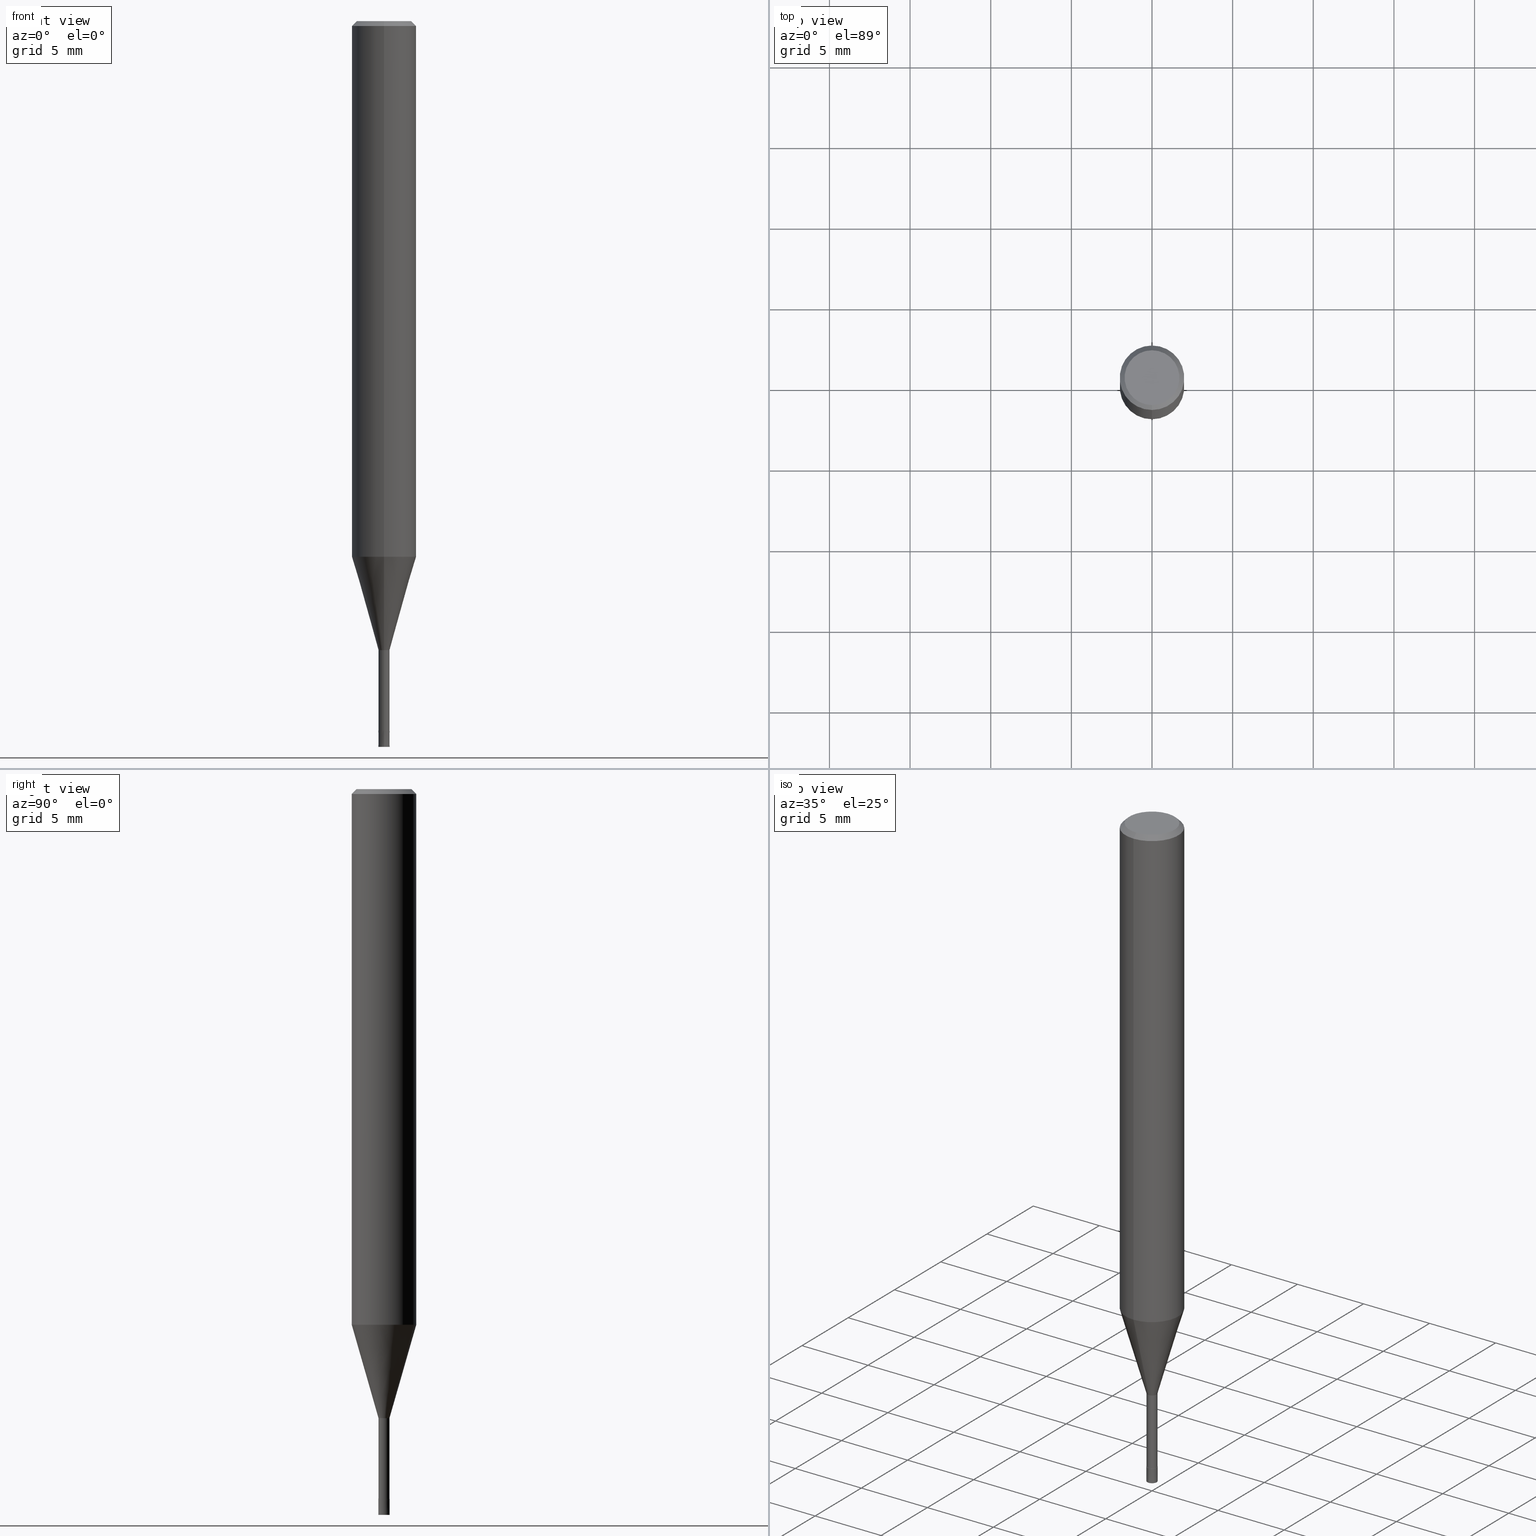
[diagram: canonical four-view strip — front | top / right | iso, engineering-drawing reading convention]
A machine part, canonical four-view strip (front | top / right | iso — engineering-drawing reading convention). The complete STEP part file that produces these views, byte-faithful:
ISO-10303-21;
HEADER;
FILE_DESCRIPTION(('no description'),'unknown implementation level');
FILE_NAME('HLS2007-060-Huellk.stp','  ',('CIMSOURCE GmbH'),('CADClick - KiM GmbH - www.kimweb.de'),'unknown preprocess','ACIS','unknown authorization');
FILE_SCHEMA(('automotive_design'));
ENDSEC;
DATA;
#1=MECHANICAL_DESIGN_GEOMETRIC_PRESENTATION_REPRESENTATION(' ',(#14,#15,#16,#17,#18,#19,#20,#21,#22,#23,#24,#25,#26,#27,#28,#29,#30,#31,#32,#33,#34,#35,#36,#37,#38,#39,#40,#41,#42,#43,#44,#45,#46,#47,#48,#49,#50,#51,#52,#53,#54,#55,#56,#57,#58,#59,#60,#61,#62,#63,#64,#65,#66,#67,#68,#69,#70,#71,#72),#10);
#2=PRODUCT_DEFINITION_CONTEXT('',#73,'design');
#3=APPLICATION_PROTOCOL_DEFINITION('INTERNATIONAL STANDARD','automotive_design',1994,#73);
#4=PRODUCT_CATEGORY_RELATIONSHIP('NONE','NONE',#74,#75);
#5=SHAPE_DEFINITION_REPRESENTATION(#76,#77);
#6=PRODUCT_DEFINITION_CONTEXT('',#78,'design');
#7=APPLICATION_PROTOCOL_DEFINITION('INTERNATIONAL STANDARD','automotive_design',1994,#78);
#8=PRODUCT_CATEGORY_RELATIONSHIP('NONE','NONE',#79,#80);
#9=SHAPE_DEFINITION_REPRESENTATION(#81,#82);
#10= (GEOMETRIC_REPRESENTATION_CONTEXT(3)GLOBAL_UNCERTAINTY_ASSIGNED_CONTEXT((#85))GLOBAL_UNIT_ASSIGNED_CONTEXT((#87,#88,#89))REPRESENTATION_CONTEXT('NONE','WORKSPACE'));
#14=STYLED_ITEM('',(#91),#92);
#15=STYLED_ITEM('',(#93),#94);
#16=STYLED_ITEM('',(#95),#96);
#17=STYLED_ITEM('',(#97),#98);
#18=STYLED_ITEM('',(#99),#100);
#19=STYLED_ITEM('',(#101),#102);
#20=STYLED_ITEM('',(#103),#104);
#21=STYLED_ITEM('',(#105),#106);
#22=STYLED_ITEM('',(#107),#108);
#23=STYLED_ITEM('',(#109),#110);
#24=STYLED_ITEM('',(#111),#112);
#25=STYLED_ITEM('',(#113),#114);
#26=STYLED_ITEM('',(#115),#116);
#27=STYLED_ITEM('',(#117),#118);
#28=STYLED_ITEM('',(#119),#120);
#29=STYLED_ITEM('',(#121),#122);
#30=STYLED_ITEM('',(#123),#124);
#31=STYLED_ITEM('',(#125),#126);
#32=STYLED_ITEM('',(#127),#128);
#33=STYLED_ITEM('',(#129),#130);
#34=STYLED_ITEM('',(#131),#132);
#35=STYLED_ITEM('',(#133),#134);
#36=STYLED_ITEM('',(#135),#136);
#37=STYLED_ITEM('',(#137),#138);
#38=STYLED_ITEM('',(#139),#140);
#39=STYLED_ITEM('',(#141),#142);
#40=STYLED_ITEM('',(#143),#144);
#41=STYLED_ITEM('',(#145),#146);
#42=STYLED_ITEM('',(#147),#148);
#43=STYLED_ITEM('',(#149),#150);
#44=STYLED_ITEM('',(#151),#152);
#45=STYLED_ITEM('',(#153),#154);
#46=STYLED_ITEM('',(#155),#156);
#47=STYLED_ITEM('',(#157),#158);
#48=STYLED_ITEM('',(#159),#160);
#49=STYLED_ITEM('',(#161),#162);
#50=STYLED_ITEM('',(#163),#164);
#51=STYLED_ITEM('',(#165),#166);
#52=STYLED_ITEM('',(#167),#168);
#53=STYLED_ITEM('',(#169),#170);
#54=STYLED_ITEM('',(#171),#172);
#55=STYLED_ITEM('',(#173),#174);
#56=STYLED_ITEM('',(#175),#176);
#57=STYLED_ITEM('',(#177),#178);
#58=STYLED_ITEM('',(#179),#180);
#59=STYLED_ITEM('',(#181),#182);
#60=STYLED_ITEM('',(#183),#184);
#61=STYLED_ITEM('',(#185),#186);
#62=STYLED_ITEM('',(#187),#188);
#63=STYLED_ITEM('',(#189),#190);
#64=STYLED_ITEM('',(#191),#192);
#65=STYLED_ITEM('',(#193),#194);
#66=STYLED_ITEM('',(#195),#196);
#67=STYLED_ITEM('',(#197),#198);
#68=STYLED_ITEM('',(#199),#200);
#69=STYLED_ITEM('',(#201),#202);
#70=STYLED_ITEM('',(#203),#204);
#71=STYLED_ITEM('',(#205),#206);
#72=STYLED_ITEM('',(#207),#208);
#73=APPLICATION_CONTEXT(' ');
#74=PRODUCT_CATEGORY('part','NONE');
#75=PRODUCT_RELATED_PRODUCT_CATEGORY('detail',' ',(#209));
#76=PRODUCT_DEFINITION_SHAPE('NONE','NONE',#210);
#77=ADVANCED_BREP_SHAPE_REPRESENTATION('1',(#166,#211),#10);
#78=APPLICATION_CONTEXT(' ');
#79=PRODUCT_CATEGORY('part','NONE');
#80=PRODUCT_RELATED_PRODUCT_CATEGORY('detail',' ',(#212));
#81=PRODUCT_DEFINITION_SHAPE('NONE','NONE',#213);
#82=ADVANCED_BREP_SHAPE_REPRESENTATION('2',(#110,#214),#10);
#85=UNCERTAINTY_MEASURE_WITH_UNIT(LENGTH_MEASURE(1.0E-006),#87,'','');
#87= (CONVERSION_BASED_UNIT('MILLIMETRE',#217)LENGTH_UNIT()NAMED_UNIT(#220));
#88= (NAMED_UNIT(#222)PLANE_ANGLE_UNIT()SI_UNIT($,.RADIAN.));
#89= (NAMED_UNIT(#222)SOLID_ANGLE_UNIT()SI_UNIT($,.STERADIAN.));
#91=PRESENTATION_STYLE_ASSIGNMENT((#228));
#92=VERTEX_POINT('',#229);
#93=PRESENTATION_STYLE_ASSIGNMENT((#230));
#94=VERTEX_POINT('',#231);
#95=PRESENTATION_STYLE_ASSIGNMENT((#232));
#96=EDGE_CURVE('',#112,#178,#233,.T.);
#97=PRESENTATION_STYLE_ASSIGNMENT((#234));
#98=EDGE_CURVE('',#146,#106,#235,.T.);
#99=PRESENTATION_STYLE_ASSIGNMENT((#236));
#100=ADVANCED_FACE('',(#237),#238,.T.);
#101=PRESENTATION_STYLE_ASSIGNMENT((#239));
#102=EDGE_CURVE('',#186,#164,#240,.T.);
#103=PRESENTATION_STYLE_ASSIGNMENT((#241));
#104=EDGE_CURVE('',#132,#162,#242,.T.);
#105=PRESENTATION_STYLE_ASSIGNMENT((#243));
#106=VERTEX_POINT('',#244);
#107=PRESENTATION_STYLE_ASSIGNMENT((#245));
#108=EDGE_CURVE('',#176,#146,#246,.T.);
#109=PRESENTATION_STYLE_ASSIGNMENT((#247));
#110=MANIFOLD_SOLID_BREP('2',#248);
#111=PRESENTATION_STYLE_ASSIGNMENT((#249));
#112=VERTEX_POINT('',#250);
#113=PRESENTATION_STYLE_ASSIGNMENT((#251));
#114=EDGE_CURVE('',#178,#112,#252,.T.);
#115=PRESENTATION_STYLE_ASSIGNMENT((#253));
#116=EDGE_CURVE('',#94,#146,#254,.T.);
#117=PRESENTATION_STYLE_ASSIGNMENT((#255));
#118=EDGE_CURVE('',#164,#150,#256,.T.);
#119=PRESENTATION_STYLE_ASSIGNMENT((#257));
#120=EDGE_CURVE('',#124,#176,#258,.T.);
#121=PRESENTATION_STYLE_ASSIGNMENT((#259));
#122=EDGE_CURVE('',#148,#94,#260,.T.);
#123=PRESENTATION_STYLE_ASSIGNMENT((#261));
#124=VERTEX_POINT('',#262);
#125=PRESENTATION_STYLE_ASSIGNMENT((#263));
#126=EDGE_CURVE('',#170,#186,#264,.T.);
#127=PRESENTATION_STYLE_ASSIGNMENT((#265));
#128=EDGE_CURVE('',#92,#162,#266,.T.);
#129=PRESENTATION_STYLE_ASSIGNMENT((#267));
#130=EDGE_CURVE('',#124,#106,#268,.T.);
#131=PRESENTATION_STYLE_ASSIGNMENT((#269));
#132=VERTEX_POINT('',#270);
#133=PRESENTATION_STYLE_ASSIGNMENT((#271));
#134=ADVANCED_FACE('',(#272),#273,.T.);
#135=PRESENTATION_STYLE_ASSIGNMENT((#274));
#136=EDGE_CURVE('',#150,#170,#275,.T.);
#137=PRESENTATION_STYLE_ASSIGNMENT((#276));
#138=ADVANCED_FACE('',(#277),#278,.T.);
#139=PRESENTATION_STYLE_ASSIGNMENT((#279));
#140=ADVANCED_FACE('',(#280),#281,.T.);
#141=PRESENTATION_STYLE_ASSIGNMENT((#282));
#142=EDGE_CURVE('',#154,#92,#283,.T.);
#143=PRESENTATION_STYLE_ASSIGNMENT((#284));
#144=ADVANCED_FACE('',(#285),#286,.T.);
#145=PRESENTATION_STYLE_ASSIGNMENT((#287));
#146=VERTEX_POINT('',#288);
#147=PRESENTATION_STYLE_ASSIGNMENT((#289));
#148=VERTEX_POINT('',#290);
#149=PRESENTATION_STYLE_ASSIGNMENT((#291));
#150=VERTEX_POINT('',#292);
#151=PRESENTATION_STYLE_ASSIGNMENT((#293));
#152=EDGE_CURVE('',#164,#186,#294,.T.);
#153=PRESENTATION_STYLE_ASSIGNMENT((#295));
#154=VERTEX_POINT('',#296);
#155=PRESENTATION_STYLE_ASSIGNMENT((#297));
#156=ADVANCED_FACE('',(#298),#299,.T.);
#157=PRESENTATION_STYLE_ASSIGNMENT((#300));
#158=ADVANCED_FACE('',(#301),#302,.T.);
#159=PRESENTATION_STYLE_ASSIGNMENT((#303));
#160=EDGE_CURVE('',#94,#148,#304,.T.);
#161=PRESENTATION_STYLE_ASSIGNMENT((#305));
#162=VERTEX_POINT('',#306);
#163=PRESENTATION_STYLE_ASSIGNMENT((#307));
#164=VERTEX_POINT('',#308);
#165=PRESENTATION_STYLE_ASSIGNMENT((#309));
#166=MANIFOLD_SOLID_BREP('1',#310);
#167=PRESENTATION_STYLE_ASSIGNMENT((#311));
#168=EDGE_CURVE('',#132,#154,#312,.T.);
#169=PRESENTATION_STYLE_ASSIGNMENT((#313));
#170=VERTEX_POINT('',#314);
#171=PRESENTATION_STYLE_ASSIGNMENT((#315));
#172=EDGE_CURVE('',#92,#154,#316,.T.);
#173=PRESENTATION_STYLE_ASSIGNMENT((#317));
#174=EDGE_CURVE('',#150,#178,#318,.T.);
#175=PRESENTATION_STYLE_ASSIGNMENT((#319));
#176=VERTEX_POINT('',#320);
#177=PRESENTATION_STYLE_ASSIGNMENT((#321));
#178=VERTEX_POINT('',#322);
#179=PRESENTATION_STYLE_ASSIGNMENT((#323));
#180=EDGE_CURVE('',#162,#132,#324,.T.);
#181=PRESENTATION_STYLE_ASSIGNMENT((#325));
#182=ADVANCED_FACE('',(#326),#327,.T.);
#183=PRESENTATION_STYLE_ASSIGNMENT((#328));
#184=EDGE_CURVE('',#176,#148,#329,.T.);
#185=PRESENTATION_STYLE_ASSIGNMENT((#330));
#186=VERTEX_POINT('',#331);
#187=PRESENTATION_STYLE_ASSIGNMENT((#332));
#188=ADVANCED_FACE('',(#333,#334),#335,.T.);
#189=PRESENTATION_STYLE_ASSIGNMENT((#336));
#190=ADVANCED_FACE('',(#337),#338,.T.);
#191=PRESENTATION_STYLE_ASSIGNMENT((#339));
#192=EDGE_CURVE('',#106,#124,#340,.T.);
#193=PRESENTATION_STYLE_ASSIGNMENT((#341));
#194=ADVANCED_FACE('',(#342),#343,.T.);
#195=PRESENTATION_STYLE_ASSIGNMENT((#344));
#196=ADVANCED_FACE('',(#345),#346,.T.);
#197=PRESENTATION_STYLE_ASSIGNMENT((#347));
#198=EDGE_CURVE('',#170,#150,#348,.T.);
#199=PRESENTATION_STYLE_ASSIGNMENT((#349));
#200=ADVANCED_FACE('',(#350),#351,.T.);
#201=PRESENTATION_STYLE_ASSIGNMENT((#352));
#202=ADVANCED_FACE('',(#353),#354,.T.);
#203=PRESENTATION_STYLE_ASSIGNMENT((#355));
#204=EDGE_CURVE('',#112,#170,#356,.T.);
#205=PRESENTATION_STYLE_ASSIGNMENT((#357));
#206=ADVANCED_FACE('',(#358),#359,.T.);
#207=PRESENTATION_STYLE_ASSIGNMENT((#360));
#208=EDGE_CURVE('',#146,#176,#361,.T.);
#209=PRODUCT('1','1','PART-1-DESC',(#362));
#210=PRODUCT_DEFINITION('NONE','NONE',#363,#2);
#211=AXIS2_PLACEMENT_3D('',#364,#365,#366);
#212=PRODUCT('2','2','PART-2-DESC',(#367));
#213=PRODUCT_DEFINITION('NONE','NONE',#368,#6);
#214=AXIS2_PLACEMENT_3D('',#369,#370,#371);
#217=LENGTH_MEASURE_WITH_UNIT(LENGTH_MEASURE(1.0),#372);
#220=DIMENSIONAL_EXPONENTS(1.0,0.0,0.0,0.0,0.0,0.0,0.0);
#222=DIMENSIONAL_EXPONENTS(0.0,0.0,0.0,0.0,0.0,0.0,0.0);
#228=POINT_STYLE(' ',#373,POSITIVE_LENGTH_MEASURE(1.0E-006),#374);
#229=CARTESIAN_POINT('',(4.28612223837832E-017,-0.35,-45.0));
#230=POINT_STYLE(' ',#375,POSITIVE_LENGTH_MEASURE(1.0E-006),#376);
#231=CARTESIAN_POINT('',(0.0,1.99995,-33.211));
#232=CURVE_STYLE('',#377,POSITIVE_LENGTH_MEASURE(1.0E-006),#378);
#233=CIRCLE('',#379,1.7);
#234=CURVE_STYLE('',#380,POSITIVE_LENGTH_MEASURE(1.0E-006),#381);
#235=LINE('',#382,#383);
#236=SURFACE_STYLE_USAGE(.BOTH.,#384);
#237=FACE_OUTER_BOUND('',#385,.T.);
#238=PLANE('',#386);
#239=CURVE_STYLE('',#387,POSITIVE_LENGTH_MEASURE(1.0E-006),#388);
#240=CIRCLE('',#389,2.0);
#241=CURVE_STYLE('',#390,POSITIVE_LENGTH_MEASURE(1.0E-006),#391);
#242=CIRCLE('',#392,0.3499);
#243=POINT_STYLE(' ',#393,POSITIVE_LENGTH_MEASURE(1.0E-006),#394);
#244=CARTESIAN_POINT('',(0.0,0.33995,-44.0));
#245=CURVE_STYLE('',#395,POSITIVE_LENGTH_MEASURE(1.0E-006),#396);
#246=CIRCLE('',#397,0.33995);
#247=SURFACE_STYLE_USAGE(.BOTH.,#398);
#248=CLOSED_SHELL('',(#138,#156,#190,#100));
#249=POINT_STYLE(' ',#399,POSITIVE_LENGTH_MEASURE(1.0E-006),#400);
#250=CARTESIAN_POINT('',(0.0,1.7,0.0));
#251=CURVE_STYLE('',#401,POSITIVE_LENGTH_MEASURE(1.0E-006),#402);
#252=CIRCLE('',#403,1.7);
#253=CURVE_STYLE('',#404,POSITIVE_LENGTH_MEASURE(1.0E-006),#405);
#254=LINE('',#406,#407);
#255=CURVE_STYLE('',#408,POSITIVE_LENGTH_MEASURE(1.0E-006),#409);
#256=LINE('',#410,#411);
#257=CURVE_STYLE('',#412,POSITIVE_LENGTH_MEASURE(1.0E-006),#413);
#258=LINE('',#414,#415);
#259=CURVE_STYLE('',#416,POSITIVE_LENGTH_MEASURE(1.0E-006),#417);
#260=CIRCLE('',#418,1.99995);
#261=POINT_STYLE(' ',#419,POSITIVE_LENGTH_MEASURE(1.0E-006),#420);
#262=CARTESIAN_POINT('',(4.16304929981917E-017,-0.33995,-44.0));
#263=CURVE_STYLE('',#421,POSITIVE_LENGTH_MEASURE(1.0E-006),#422);
#264=LINE('',#423,#424);
#265=CURVE_STYLE('',#425,POSITIVE_LENGTH_MEASURE(1.0E-006),#426);
#266=LINE('',#427,#428);
#267=CURVE_STYLE('',#429,POSITIVE_LENGTH_MEASURE(1.0E-006),#430);
#268=CIRCLE('',#431,0.33995);
#269=POINT_STYLE(' ',#432,POSITIVE_LENGTH_MEASURE(1.0E-006),#433);
#270=CARTESIAN_POINT('',(0.0,0.3499,-44.0));
#271=SURFACE_STYLE_USAGE(.BOTH.,#434);
#272=FACE_OUTER_BOUND('',#435,.T.);
#273=CYLINDRICAL_SURFACE('',#436,2.0);
#274=CURVE_STYLE('',#437,POSITIVE_LENGTH_MEASURE(1.0E-006),#438);
#275=CIRCLE('',#439,2.0);
#276=SURFACE_STYLE_USAGE(.BOTH.,#440);
#277=FACE_OUTER_BOUND('',#441,.T.);
#278=CONICAL_SURFACE('',#442,0.34995,9.99999996666557E-005);
#279=SURFACE_STYLE_USAGE(.BOTH.,#443);
#280=FACE_OUTER_BOUND('',#444,.T.);
#281=CYLINDRICAL_SURFACE('',#445,0.33995);
#282=CURVE_STYLE('',#446,POSITIVE_LENGTH_MEASURE(1.0E-006),#447);
#283=CIRCLE('',#448,0.35);
#284=SURFACE_STYLE_USAGE(.BOTH.,#449);
#285=FACE_OUTER_BOUND('',#450,.T.);
#286=PLANE('',#451);
#287=POINT_STYLE(' ',#452,POSITIVE_LENGTH_MEASURE(1.0E-006),#453);
#288=CARTESIAN_POINT('',(0.0,0.33995,-39.0));
#289=POINT_STYLE(' ',#454,POSITIVE_LENGTH_MEASURE(1.0E-006),#455);
#290=CARTESIAN_POINT('',(2.44915147732706E-016,-1.99995,-33.211));
#291=POINT_STYLE(' ',#456,POSITIVE_LENGTH_MEASURE(1.0E-006),#457);
#292=CARTESIAN_POINT('',(2.44921270764475E-016,-2.0,-0.299999999999997));
#293=CURVE_STYLE('',#458,POSITIVE_LENGTH_MEASURE(1.0E-006),#459);
#294=CIRCLE('',#460,2.0);
#295=POINT_STYLE(' ',#461,POSITIVE_LENGTH_MEASURE(1.0E-006),#462);
#296=CARTESIAN_POINT('',(0.0,0.35,-45.0));
#297=SURFACE_STYLE_USAGE(.BOTH.,#463);
#298=FACE_OUTER_BOUND('',#464,.T.);
#299=PLANE('',#465);
#300=SURFACE_STYLE_USAGE(.BOTH.,#466);
#301=FACE_OUTER_BOUND('',#467,.T.);
#302=CONICAL_SURFACE('',#468,1.85,0.785398163397453);
#303=CURVE_STYLE('',#469,POSITIVE_LENGTH_MEASURE(1.0E-006),#470);
#304=CIRCLE('',#471,1.99995);
#305=POINT_STYLE(' ',#472,POSITIVE_LENGTH_MEASURE(1.0E-006),#473);
#306=CARTESIAN_POINT('',(4.2848976320245E-017,-0.3499,-44.0));
#307=POINT_STYLE(' ',#474,POSITIVE_LENGTH_MEASURE(1.0E-006),#475);
#308=CARTESIAN_POINT('',(2.44921270764475E-016,-2.0,-33.211));
#309=SURFACE_STYLE_USAGE(.BOTH.,#476);
#310=CLOSED_SHELL('',(#140,#200,#182,#202,#188,#206,#158,#134,#194,#196,#144));
#311=CURVE_STYLE('',#477,POSITIVE_LENGTH_MEASURE(1.0E-006),#478);
#312=LINE('',#479,#480);
#313=POINT_STYLE(' ',#481,POSITIVE_LENGTH_MEASURE(1.0E-006),#482);
#314=CARTESIAN_POINT('',(0.0,2.0,-0.299999999999997));
#315=CURVE_STYLE('',#483,POSITIVE_LENGTH_MEASURE(1.0E-006),#484);
#316=CIRCLE('',#485,0.35);
#317=CURVE_STYLE('',#486,POSITIVE_LENGTH_MEASURE(1.0E-006),#487);
#318=LINE('',#488,#489);
#319=POINT_STYLE(' ',#490,POSITIVE_LENGTH_MEASURE(1.0E-006),#491);
#320=CARTESIAN_POINT('',(4.16304929981917E-017,-0.33995,-39.0));
#321=POINT_STYLE(' ',#492,POSITIVE_LENGTH_MEASURE(1.0E-006),#493);
#322=CARTESIAN_POINT('',(2.08183080149804E-016,-1.7,0.0));
#323=CURVE_STYLE('',#494,POSITIVE_LENGTH_MEASURE(1.0E-006),#495);
#324=CIRCLE('',#496,0.3499);
#325=SURFACE_STYLE_USAGE(.BOTH.,#497);
#326=FACE_OUTER_BOUND('',#498,.T.);
#327=CYLINDRICAL_SURFACE('',#499,2.0);
#328=CURVE_STYLE('',#500,POSITIVE_LENGTH_MEASURE(1.0E-006),#501);
#329=LINE('',#502,#503);
#330=POINT_STYLE(' ',#504,POSITIVE_LENGTH_MEASURE(1.0E-006),#505);
#331=CARTESIAN_POINT('',(0.0,2.0,-33.211));
#332=SURFACE_STYLE_USAGE(.BOTH.,#506);
#333=FACE_OUTER_BOUND('',#507,.T.);
#334=FACE_BOUND('',#508,.T.);
#335=PLANE('',#509);
#336=SURFACE_STYLE_USAGE(.BOTH.,#510);
#337=FACE_OUTER_BOUND('',#511,.T.);
#338=CONICAL_SURFACE('',#512,0.34995,9.99999996666557E-005);
#339=CURVE_STYLE('',#513,POSITIVE_LENGTH_MEASURE(1.0E-006),#514);
#340=CIRCLE('',#515,0.33995);
#341=SURFACE_STYLE_USAGE(.BOTH.,#516);
#342=FACE_OUTER_BOUND('',#517,.T.);
#343=CONICAL_SURFACE('',#518,1.16995,0.279257622355071);
#344=SURFACE_STYLE_USAGE(.BOTH.,#519);
#345=FACE_OUTER_BOUND('',#520,.T.);
#346=CYLINDRICAL_SURFACE('',#521,0.33995);
#347=CURVE_STYLE('',#522,POSITIVE_LENGTH_MEASURE(1.0E-006),#523);
#348=CIRCLE('',#524,2.0);
#349=SURFACE_STYLE_USAGE(.BOTH.,#525);
#350=FACE_OUTER_BOUND('',#526,.T.);
#351=CONICAL_SURFACE('',#527,1.16995,0.279257622355071);
#352=SURFACE_STYLE_USAGE(.BOTH.,#528);
#353=FACE_OUTER_BOUND('',#529,.T.);
#354=CONICAL_SURFACE('',#530,1.85,0.785398163397453);
#355=CURVE_STYLE('',#531,POSITIVE_LENGTH_MEASURE(1.0E-006),#532);
#356=LINE('',#533,#534);
#357=SURFACE_STYLE_USAGE(.BOTH.,#535);
#358=FACE_OUTER_BOUND('',#536,.T.);
#359=PLANE('',#537);
#360=CURVE_STYLE('',#538,POSITIVE_LENGTH_MEASURE(1.0E-006),#539);
#361=CIRCLE('',#540,0.33995);
#362=PRODUCT_CONTEXT('',#73,'mechanical');
#363=PRODUCT_DEFINITION_FORMATION_WITH_SPECIFIED_SOURCE(' ','NONE',#209,.NOT_KNOWN.);
#364=CARTESIAN_POINT('',(0.0,0.0,0.0));
#365=DIRECTION('',(0.0,0.0,1.0));
#366=DIRECTION('',(1.0,0.0,0.0));
#367=PRODUCT_CONTEXT('',#78,'mechanical');
#368=PRODUCT_DEFINITION_FORMATION_WITH_SPECIFIED_SOURCE(' ','NONE',#212,.NOT_KNOWN.);
#369=CARTESIAN_POINT('',(0.0,0.0,0.0));
#370=DIRECTION('',(0.0,0.0,1.0));
#371=DIRECTION('',(1.0,0.0,0.0));
#372= (NAMED_UNIT(#220)LENGTH_UNIT()SI_UNIT(.MILLI.,.METRE.));
#373=PRE_DEFINED_MARKER('');
#374=COLOUR_RGB('',0.800000011920929,0.800000011920929,0.800000011920929);
#375=PRE_DEFINED_MARKER('');
#376=COLOUR_RGB('',0.498039215803146,0.498039215803146,0.498039215803146);
#377=DRAUGHTING_PRE_DEFINED_CURVE_FONT('continuous');
#378=COLOUR_RGB('',0.498039215803146,0.498039215803146,0.498039215803146);
#379=AXIS2_PLACEMENT_3D('',#542,#543,#544);
#380=DRAUGHTING_PRE_DEFINED_CURVE_FONT('continuous');
#381=COLOUR_RGB('',0.498039215803146,0.498039215803146,0.498039215803146);
#382=CARTESIAN_POINT('',(-4.16304929981917E-017,0.33995,-41.5));
#383=VECTOR('',#545,1.0);
#384=SURFACE_SIDE_STYLE('',(#546));
#385=EDGE_LOOP('',(#547,#548));
#386=AXIS2_PLACEMENT_3D('',#549,#550,#551);
#387=DRAUGHTING_PRE_DEFINED_CURVE_FONT('continuous');
#388=COLOUR_RGB('',0.498039215803146,0.498039215803146,0.498039215803146);
#389=AXIS2_PLACEMENT_3D('',#552,#553,#554);
#390=DRAUGHTING_PRE_DEFINED_CURVE_FONT('continuous');
#391=COLOUR_RGB('',0.800000011920929,0.800000011920929,0.800000011920929);
#392=AXIS2_PLACEMENT_3D('',#555,#556,#557);
#393=PRE_DEFINED_MARKER('');
#394=COLOUR_RGB('',0.498039215803146,0.498039215803146,0.498039215803146);
#395=DRAUGHTING_PRE_DEFINED_CURVE_FONT('continuous');
#396=COLOUR_RGB('',0.498039215803146,0.498039215803146,0.498039215803146);
#397=AXIS2_PLACEMENT_3D('',#558,#559,#560);
#398=SURFACE_SIDE_STYLE('',(#561));
#399=PRE_DEFINED_MARKER('');
#400=COLOUR_RGB('',0.498039215803146,0.498039215803146,0.498039215803146);
#401=DRAUGHTING_PRE_DEFINED_CURVE_FONT('continuous');
#402=COLOUR_RGB('',0.498039215803146,0.498039215803146,0.498039215803146);
#403=AXIS2_PLACEMENT_3D('',#562,#563,#564);
#404=DRAUGHTING_PRE_DEFINED_CURVE_FONT('continuous');
#405=COLOUR_RGB('',0.498039215803146,0.498039215803146,0.498039215803146);
#406=CARTESIAN_POINT('',(-1.43272820365449E-016,1.16995,-36.1055));
#407=VECTOR('',#565,1.0);
#408=DRAUGHTING_PRE_DEFINED_CURVE_FONT('continuous');
#409=COLOUR_RGB('',0.498039215803146,0.498039215803146,0.498039215803146);
#410=CARTESIAN_POINT('',(2.44921270764475E-016,-2.0,-16.7555));
#411=VECTOR('',#566,1.0);
#412=DRAUGHTING_PRE_DEFINED_CURVE_FONT('continuous');
#413=COLOUR_RGB('',0.498039215803146,0.498039215803146,0.498039215803146);
#414=CARTESIAN_POINT('',(4.16304929981917E-017,-0.33995,-41.5));
#415=VECTOR('',#567,1.0);
#416=DRAUGHTING_PRE_DEFINED_CURVE_FONT('continuous');
#417=COLOUR_RGB('',0.498039215803146,0.498039215803146,0.498039215803146);
#418=AXIS2_PLACEMENT_3D('',#568,#569,#570);
#419=PRE_DEFINED_MARKER('');
#420=COLOUR_RGB('',0.498039215803146,0.498039215803146,0.498039215803146);
#421=DRAUGHTING_PRE_DEFINED_CURVE_FONT('continuous');
#422=COLOUR_RGB('',0.498039215803146,0.498039215803146,0.498039215803146);
#423=CARTESIAN_POINT('',(-2.44921270764475E-016,2.0,-16.7555));
#424=VECTOR('',#571,1.0);
#425=DRAUGHTING_PRE_DEFINED_CURVE_FONT('continuous');
#426=COLOUR_RGB('',0.800000011920929,0.800000011920929,0.800000011920929);
#427=CARTESIAN_POINT('',(4.28550993520141E-017,-0.34995,-44.5));
#428=VECTOR('',#572,1.0);
#429=DRAUGHTING_PRE_DEFINED_CURVE_FONT('continuous');
#430=COLOUR_RGB('',0.498039215803146,0.498039215803146,0.498039215803146);
#431=AXIS2_PLACEMENT_3D('',#573,#574,#575);
#432=PRE_DEFINED_MARKER('');
#433=COLOUR_RGB('',0.800000011920929,0.800000011920929,0.800000011920929);
#434=SURFACE_SIDE_STYLE('',(#576));
#435=EDGE_LOOP('',(#577,#578,#579,#580));
#436=AXIS2_PLACEMENT_3D('',#581,#582,#583);
#437=DRAUGHTING_PRE_DEFINED_CURVE_FONT('continuous');
#438=COLOUR_RGB('',0.498039215803146,0.498039215803146,0.498039215803146);
#439=AXIS2_PLACEMENT_3D('',#584,#585,#586);
#440=SURFACE_SIDE_STYLE('',(#587));
#441=EDGE_LOOP('',(#588,#589,#590,#591));
#442=AXIS2_PLACEMENT_3D('',#592,#593,#594);
#443=SURFACE_SIDE_STYLE('',(#595));
#444=EDGE_LOOP('',(#596,#597,#598,#599));
#445=AXIS2_PLACEMENT_3D('',#600,#601,#602);
#446=DRAUGHTING_PRE_DEFINED_CURVE_FONT('continuous');
#447=COLOUR_RGB('',0.800000011920929,0.800000011920929,0.800000011920929);
#448=AXIS2_PLACEMENT_3D('',#603,#604,#605);
#449=SURFACE_SIDE_STYLE('',(#606));
#450=EDGE_LOOP('',(#607,#608));
#451=AXIS2_PLACEMENT_3D('',#609,#610,#611);
#452=PRE_DEFINED_MARKER('');
#453=COLOUR_RGB('',0.498039215803146,0.498039215803146,0.498039215803146);
#454=PRE_DEFINED_MARKER('');
#455=COLOUR_RGB('',0.498039215803146,0.498039215803146,0.498039215803146);
#456=PRE_DEFINED_MARKER('');
#457=COLOUR_RGB('',0.498039215803146,0.498039215803146,0.498039215803146);
#458=DRAUGHTING_PRE_DEFINED_CURVE_FONT('continuous');
#459=COLOUR_RGB('',0.498039215803146,0.498039215803146,0.498039215803146);
#460=AXIS2_PLACEMENT_3D('',#612,#613,#614);
#461=PRE_DEFINED_MARKER('');
#462=COLOUR_RGB('',0.800000011920929,0.800000011920929,0.800000011920929);
#463=SURFACE_SIDE_STYLE('',(#615));
#464=EDGE_LOOP('',(#616,#617));
#465=AXIS2_PLACEMENT_3D('',#618,#619,#620);
#466=SURFACE_SIDE_STYLE('',(#621));
#467=EDGE_LOOP('',(#622,#623,#624,#625));
#468=AXIS2_PLACEMENT_3D('',#626,#627,#628);
#469=DRAUGHTING_PRE_DEFINED_CURVE_FONT('continuous');
#470=COLOUR_RGB('',0.498039215803146,0.498039215803146,0.498039215803146);
#471=AXIS2_PLACEMENT_3D('',#629,#630,#631);
#472=PRE_DEFINED_MARKER('');
#473=COLOUR_RGB('',0.800000011920929,0.800000011920929,0.800000011920929);
#474=PRE_DEFINED_MARKER('');
#475=COLOUR_RGB('',0.498039215803146,0.498039215803146,0.498039215803146);
#476=SURFACE_SIDE_STYLE('',(#632));
#477=DRAUGHTING_PRE_DEFINED_CURVE_FONT('continuous');
#478=COLOUR_RGB('',0.800000011920929,0.800000011920929,0.800000011920929);
#479=CARTESIAN_POINT('',(-4.28550993520141E-017,0.34995,-44.5));
#480=VECTOR('',#633,1.0);
#481=PRE_DEFINED_MARKER('');
#482=COLOUR_RGB('',0.498039215803146,0.498039215803146,0.498039215803146);
#483=DRAUGHTING_PRE_DEFINED_CURVE_FONT('continuous');
#484=COLOUR_RGB('',0.800000011920929,0.800000011920929,0.800000011920929);
#485=AXIS2_PLACEMENT_3D('',#634,#635,#636);
#486=DRAUGHTING_PRE_DEFINED_CURVE_FONT('continuous');
#487=COLOUR_RGB('',0.498039215803146,0.498039215803146,0.498039215803146);
#488=CARTESIAN_POINT('',(2.2655217545714E-016,-1.85,-0.149999999999999));
#489=VECTOR('',#637,1.0);
#490=PRE_DEFINED_MARKER('');
#491=COLOUR_RGB('',0.498039215803146,0.498039215803146,0.498039215803146);
#492=PRE_DEFINED_MARKER('');
#493=COLOUR_RGB('',0.498039215803146,0.498039215803146,0.498039215803146);
#494=DRAUGHTING_PRE_DEFINED_CURVE_FONT('continuous');
#495=COLOUR_RGB('',0.800000011920929,0.800000011920929,0.800000011920929);
#496=AXIS2_PLACEMENT_3D('',#638,#639,#640);
#497=SURFACE_SIDE_STYLE('',(#641));
#498=EDGE_LOOP('',(#642,#643,#644,#645));
#499=AXIS2_PLACEMENT_3D('',#646,#647,#648);
#500=DRAUGHTING_PRE_DEFINED_CURVE_FONT('continuous');
#501=COLOUR_RGB('',0.498039215803146,0.498039215803146,0.498039215803146);
#502=CARTESIAN_POINT('',(1.43272820365449E-016,-1.16995,-36.1055));
#503=VECTOR('',#649,1.0);
#504=PRE_DEFINED_MARKER('');
#505=COLOUR_RGB('',0.498039215803146,0.498039215803146,0.498039215803146);
#506=SURFACE_SIDE_STYLE('',(#650));
#507=EDGE_LOOP('',(#651,#652));
#508=EDGE_LOOP('',(#653,#654));
#509=AXIS2_PLACEMENT_3D('',#655,#656,#657);
#510=SURFACE_SIDE_STYLE('',(#658));
#511=EDGE_LOOP('',(#659,#660,#661,#662));
#512=AXIS2_PLACEMENT_3D('',#663,#664,#665);
#513=DRAUGHTING_PRE_DEFINED_CURVE_FONT('continuous');
#514=COLOUR_RGB('',0.498039215803146,0.498039215803146,0.498039215803146);
#515=AXIS2_PLACEMENT_3D('',#666,#667,#668);
#516=SURFACE_SIDE_STYLE('',(#669));
#517=EDGE_LOOP('',(#670,#671,#672,#673));
#518=AXIS2_PLACEMENT_3D('',#674,#675,#676);
#519=SURFACE_SIDE_STYLE('',(#677));
#520=EDGE_LOOP('',(#678,#679,#680,#681));
#521=AXIS2_PLACEMENT_3D('',#682,#683,#684);
#522=DRAUGHTING_PRE_DEFINED_CURVE_FONT('continuous');
#523=COLOUR_RGB('',0.498039215803146,0.498039215803146,0.498039215803146);
#524=AXIS2_PLACEMENT_3D('',#685,#686,#687);
#525=SURFACE_SIDE_STYLE('',(#688));
#526=EDGE_LOOP('',(#689,#690,#691,#692));
#527=AXIS2_PLACEMENT_3D('',#693,#694,#695);
#528=SURFACE_SIDE_STYLE('',(#696));
#529=EDGE_LOOP('',(#697,#698,#699,#700));
#530=AXIS2_PLACEMENT_3D('',#701,#702,#703);
#531=DRAUGHTING_PRE_DEFINED_CURVE_FONT('continuous');
#532=COLOUR_RGB('',0.498039215803146,0.498039215803146,0.498039215803146);
#533=CARTESIAN_POINT('',(-2.2655217545714E-016,1.85,-0.149999999999999));
#534=VECTOR('',#704,1.0);
#535=SURFACE_SIDE_STYLE('',(#705));
#536=EDGE_LOOP('',(#706,#707));
#537=AXIS2_PLACEMENT_3D('',#708,#709,#710);
#538=DRAUGHTING_PRE_DEFINED_CURVE_FONT('continuous');
#539=COLOUR_RGB('',0.498039215803146,0.498039215803146,0.498039215803146);
#540=AXIS2_PLACEMENT_3D('',#711,#712,#713);
#542=CARTESIAN_POINT('',(0.0,0.0,0.0));
#543=DIRECTION('',(0.0,0.0,-1.0));
#544=DIRECTION('',(0.0,1.0,0.0));
#545=DIRECTION('',(0.0,0.0,-1.0));
#546=SURFACE_STYLE_FILL_AREA(#714);
#547=ORIENTED_EDGE('',*,*,#142,.T.);
#548=ORIENTED_EDGE('',*,*,#172,.T.);
#549=CARTESIAN_POINT('',(0.0,0.1725,-45.0));
#550=DIRECTION('',(0.0,0.0,-1.0));
#551=DIRECTION('',(0.0,1.0,0.0));
#552=CARTESIAN_POINT('',(0.0,0.0,-33.211));
#553=DIRECTION('',(0.0,0.0,-1.0));
#554=DIRECTION('',(0.0,1.0,0.0));
#555=CARTESIAN_POINT('',(0.0,0.0,-44.0));
#556=DIRECTION('',(0.0,0.0,-1.0));
#557=DIRECTION('',(0.0,1.0,0.0));
#558=CARTESIAN_POINT('',(0.0,0.0,-39.0));
#559=DIRECTION('',(0.0,0.0,-1.0));
#560=DIRECTION('',(0.0,1.0,0.0));
#561=SURFACE_STYLE_FILL_AREA(#715);
#562=CARTESIAN_POINT('',(0.0,0.0,0.0));
#563=DIRECTION('',(0.0,0.0,-1.0));
#564=DIRECTION('',(0.0,1.0,0.0));
#565=DIRECTION('',(3.37553074882733E-017,-0.275642106403519,-0.961260333716851));
#566=DIRECTION('',(-0.0,-0.0,1.0));
#567=DIRECTION('',(-0.0,-0.0,1.0));
#568=CARTESIAN_POINT('',(0.0,0.0,-33.211));
#569=DIRECTION('',(0.0,0.0,-1.0));
#570=DIRECTION('',(0.0,1.0,0.0));
#571=DIRECTION('',(0.0,0.0,-1.0));
#572=DIRECTION('',(-1.22460634769921E-020,9.9999999499989E-005,0.999999995));
#573=CARTESIAN_POINT('',(0.0,0.0,-44.0));
#574=DIRECTION('',(0.0,0.0,-1.0));
#575=DIRECTION('',(0.0,1.0,0.0));
#576=SURFACE_STYLE_FILL_AREA(#716);
#577=ORIENTED_EDGE('',*,*,#126,.T.);
#578=ORIENTED_EDGE('',*,*,#152,.F.);
#579=ORIENTED_EDGE('',*,*,#118,.T.);
#580=ORIENTED_EDGE('',*,*,#136,.T.);
#581=CARTESIAN_POINT('',(0.0,0.0,-16.7555));
#582=DIRECTION('',(-0.0,-0.0,1.0));
#583=DIRECTION('',(0.0,1.0,0.0));
#584=CARTESIAN_POINT('',(0.0,0.0,-0.299999999999997));
#585=DIRECTION('',(0.0,0.0,-1.0));
#586=DIRECTION('',(0.0,1.0,0.0));
#587=SURFACE_STYLE_FILL_AREA(#717);
#588=ORIENTED_EDGE('',*,*,#168,.F.);
#589=ORIENTED_EDGE('',*,*,#104,.T.);
#590=ORIENTED_EDGE('',*,*,#128,.F.);
#591=ORIENTED_EDGE('',*,*,#142,.F.);
#592=CARTESIAN_POINT('',(0.0,0.0,-44.5));
#593=DIRECTION('',(0.0,-0.0,-1.0));
#594=DIRECTION('',(0.0,1.0,0.0));
#595=SURFACE_STYLE_FILL_AREA(#718);
#596=ORIENTED_EDGE('',*,*,#98,.F.);
#597=ORIENTED_EDGE('',*,*,#208,.T.);
#598=ORIENTED_EDGE('',*,*,#120,.F.);
#599=ORIENTED_EDGE('',*,*,#192,.F.);
#600=CARTESIAN_POINT('',(0.0,0.0,-41.5));
#601=DIRECTION('',(-0.0,-0.0,1.0));
#602=DIRECTION('',(0.0,1.0,0.0));
#603=CARTESIAN_POINT('',(0.0,0.0,-45.0));
#604=DIRECTION('',(0.0,0.0,-1.0));
#605=DIRECTION('',(0.0,1.0,0.0));
#606=SURFACE_STYLE_FILL_AREA(#719);
#607=ORIENTED_EDGE('',*,*,#192,.T.);
#608=ORIENTED_EDGE('',*,*,#130,.T.);
#609=CARTESIAN_POINT('',(0.0,0.169975,-44.0));
#610=DIRECTION('',(0.0,0.0,-1.0));
#611=DIRECTION('',(0.0,1.0,0.0));
#612=CARTESIAN_POINT('',(0.0,0.0,-33.211));
#613=DIRECTION('',(0.0,0.0,-1.0));
#614=DIRECTION('',(0.0,1.0,0.0));
#615=SURFACE_STYLE_FILL_AREA(#720);
#616=ORIENTED_EDGE('',*,*,#104,.F.);
#617=ORIENTED_EDGE('',*,*,#180,.F.);
#618=CARTESIAN_POINT('',(0.0,0.17495,-44.0));
#619=DIRECTION('',(-0.0,0.0,1.0));
#620=DIRECTION('',(0.0,-1.0,0.0));
#621=SURFACE_STYLE_FILL_AREA(#721);
#622=ORIENTED_EDGE('',*,*,#204,.T.);
#623=ORIENTED_EDGE('',*,*,#136,.F.);
#624=ORIENTED_EDGE('',*,*,#174,.T.);
#625=ORIENTED_EDGE('',*,*,#114,.T.);
#626=CARTESIAN_POINT('',(0.0,0.0,-0.149999999999999));
#627=DIRECTION('',(0.0,-0.0,-1.0));
#628=DIRECTION('',(0.0,1.0,0.0));
#629=CARTESIAN_POINT('',(0.0,0.0,-33.211));
#630=DIRECTION('',(0.0,0.0,-1.0));
#631=DIRECTION('',(0.0,1.0,0.0));
#632=SURFACE_STYLE_FILL_AREA(#722);
#633=DIRECTION('',(-1.22460634769921E-020,9.9999999499989E-005,-0.999999995));
#634=CARTESIAN_POINT('',(0.0,0.0,-45.0));
#635=DIRECTION('',(0.0,0.0,-1.0));
#636=DIRECTION('',(0.0,1.0,0.0));
#637=DIRECTION('',(-8.6592745707194E-017,0.707106781186551,0.707106781186544));
#638=CARTESIAN_POINT('',(0.0,0.0,-44.0));
#639=DIRECTION('',(0.0,0.0,-1.0));
#640=DIRECTION('',(0.0,1.0,0.0));
#641=SURFACE_STYLE_FILL_AREA(#723);
#642=ORIENTED_EDGE('',*,*,#126,.F.);
#643=ORIENTED_EDGE('',*,*,#198,.T.);
#644=ORIENTED_EDGE('',*,*,#118,.F.);
#645=ORIENTED_EDGE('',*,*,#102,.F.);
#646=CARTESIAN_POINT('',(0.0,0.0,-16.7555));
#647=DIRECTION('',(-0.0,-0.0,1.0));
#648=DIRECTION('',(0.0,1.0,0.0));
#649=DIRECTION('',(3.37553074882733E-017,-0.275642106403519,0.961260333716851));
#650=SURFACE_STYLE_FILL_AREA(#724);
#651=ORIENTED_EDGE('',*,*,#102,.T.);
#652=ORIENTED_EDGE('',*,*,#152,.T.);
#653=ORIENTED_EDGE('',*,*,#160,.F.);
#654=ORIENTED_EDGE('',*,*,#122,.F.);
#655=CARTESIAN_POINT('',(0.0,1.0,-33.211));
#656=DIRECTION('',(0.0,0.0,-1.0));
#657=DIRECTION('',(0.0,1.0,0.0));
#658=SURFACE_STYLE_FILL_AREA(#725);
#659=ORIENTED_EDGE('',*,*,#168,.T.);
#660=ORIENTED_EDGE('',*,*,#172,.F.);
#661=ORIENTED_EDGE('',*,*,#128,.T.);
#662=ORIENTED_EDGE('',*,*,#180,.T.);
#663=CARTESIAN_POINT('',(0.0,0.0,-44.5));
#664=DIRECTION('',(0.0,-0.0,-1.0));
#665=DIRECTION('',(0.0,1.0,0.0));
#666=CARTESIAN_POINT('',(0.0,0.0,-44.0));
#667=DIRECTION('',(0.0,0.0,-1.0));
#668=DIRECTION('',(0.0,1.0,0.0));
#669=SURFACE_STYLE_FILL_AREA(#726);
#670=ORIENTED_EDGE('',*,*,#116,.T.);
#671=ORIENTED_EDGE('',*,*,#108,.F.);
#672=ORIENTED_EDGE('',*,*,#184,.T.);
#673=ORIENTED_EDGE('',*,*,#122,.T.);
#674=CARTESIAN_POINT('',(0.0,0.0,-36.1055));
#675=DIRECTION('',(-0.0,-0.0,1.0));
#676=DIRECTION('',(0.0,1.0,0.0));
#677=SURFACE_STYLE_FILL_AREA(#727);
#678=ORIENTED_EDGE('',*,*,#98,.T.);
#679=ORIENTED_EDGE('',*,*,#130,.F.);
#680=ORIENTED_EDGE('',*,*,#120,.T.);
#681=ORIENTED_EDGE('',*,*,#108,.T.);
#682=CARTESIAN_POINT('',(0.0,0.0,-41.5));
#683=DIRECTION('',(-0.0,-0.0,1.0));
#684=DIRECTION('',(0.0,1.0,0.0));
#685=CARTESIAN_POINT('',(0.0,0.0,-0.299999999999997));
#686=DIRECTION('',(0.0,0.0,-1.0));
#687=DIRECTION('',(0.0,1.0,0.0));
#688=SURFACE_STYLE_FILL_AREA(#728);
#689=ORIENTED_EDGE('',*,*,#116,.F.);
#690=ORIENTED_EDGE('',*,*,#160,.T.);
#691=ORIENTED_EDGE('',*,*,#184,.F.);
#692=ORIENTED_EDGE('',*,*,#208,.F.);
#693=CARTESIAN_POINT('',(0.0,0.0,-36.1055));
#694=DIRECTION('',(-0.0,-0.0,1.0));
#695=DIRECTION('',(0.0,1.0,0.0));
#696=SURFACE_STYLE_FILL_AREA(#729);
#697=ORIENTED_EDGE('',*,*,#204,.F.);
#698=ORIENTED_EDGE('',*,*,#96,.T.);
#699=ORIENTED_EDGE('',*,*,#174,.F.);
#700=ORIENTED_EDGE('',*,*,#198,.F.);
#701=CARTESIAN_POINT('',(0.0,0.0,-0.149999999999999));
#702=DIRECTION('',(0.0,-0.0,-1.0));
#703=DIRECTION('',(0.0,1.0,0.0));
#704=DIRECTION('',(-8.6592745707194E-017,0.707106781186551,-0.707106781186544));
#705=SURFACE_STYLE_FILL_AREA(#730);
#706=ORIENTED_EDGE('',*,*,#96,.F.);
#707=ORIENTED_EDGE('',*,*,#114,.F.);
#708=CARTESIAN_POINT('',(0.0,0.85,0.0));
#709=DIRECTION('',(-0.0,0.0,1.0));
#710=DIRECTION('',(0.0,-1.0,0.0));
#711=CARTESIAN_POINT('',(0.0,0.0,-39.0));
#712=DIRECTION('',(0.0,0.0,-1.0));
#713=DIRECTION('',(0.0,1.0,0.0));
#714=FILL_AREA_STYLE('',(#731));
#715=FILL_AREA_STYLE('',(#732));
#716=FILL_AREA_STYLE('',(#733));
#717=FILL_AREA_STYLE('',(#734));
#718=FILL_AREA_STYLE('',(#735));
#719=FILL_AREA_STYLE('',(#736));
#720=FILL_AREA_STYLE('',(#737));
#721=FILL_AREA_STYLE('',(#738));
#722=FILL_AREA_STYLE('',(#739));
#723=FILL_AREA_STYLE('',(#740));
#724=FILL_AREA_STYLE('',(#741));
#725=FILL_AREA_STYLE('',(#742));
#726=FILL_AREA_STYLE('',(#743));
#727=FILL_AREA_STYLE('',(#744));
#728=FILL_AREA_STYLE('',(#745));
#729=FILL_AREA_STYLE('',(#746));
#730=FILL_AREA_STYLE('',(#747));
#731=FILL_AREA_STYLE_COLOUR('',#748);
#732=FILL_AREA_STYLE_COLOUR('',#749);
#733=FILL_AREA_STYLE_COLOUR('',#750);
#734=FILL_AREA_STYLE_COLOUR('',#751);
#735=FILL_AREA_STYLE_COLOUR('',#752);
#736=FILL_AREA_STYLE_COLOUR('',#753);
#737=FILL_AREA_STYLE_COLOUR('',#754);
#738=FILL_AREA_STYLE_COLOUR('',#755);
#739=FILL_AREA_STYLE_COLOUR('',#756);
#740=FILL_AREA_STYLE_COLOUR('',#757);
#741=FILL_AREA_STYLE_COLOUR('',#758);
#742=FILL_AREA_STYLE_COLOUR('',#759);
#743=FILL_AREA_STYLE_COLOUR('',#760);
#744=FILL_AREA_STYLE_COLOUR('',#761);
#745=FILL_AREA_STYLE_COLOUR('',#762);
#746=FILL_AREA_STYLE_COLOUR('',#763);
#747=FILL_AREA_STYLE_COLOUR('',#764);
#748=COLOUR_RGB('',0.800000011920929,0.800000011920929,0.800000011920929);
#749=COLOUR_RGB('',0.800000011920929,0.800000011920929,0.800000011920929);
#750=COLOUR_RGB('',0.498039215803146,0.498039215803146,0.498039215803146);
#751=COLOUR_RGB('',0.800000011920929,0.800000011920929,0.800000011920929);
#752=COLOUR_RGB('',0.498039215803146,0.498039215803146,0.498039215803146);
#753=COLOUR_RGB('',0.498039215803146,0.498039215803146,0.498039215803146);
#754=COLOUR_RGB('',0.800000011920929,0.800000011920929,0.800000011920929);
#755=COLOUR_RGB('',0.498039215803146,0.498039215803146,0.498039215803146);
#756=COLOUR_RGB('',0.498039215803146,0.498039215803146,0.498039215803146);
#757=COLOUR_RGB('',0.498039215803146,0.498039215803146,0.498039215803146);
#758=COLOUR_RGB('',0.498039215803146,0.498039215803146,0.498039215803146);
#759=COLOUR_RGB('',0.800000011920929,0.800000011920929,0.800000011920929);
#760=COLOUR_RGB('',0.498039215803146,0.498039215803146,0.498039215803146);
#761=COLOUR_RGB('',0.498039215803146,0.498039215803146,0.498039215803146);
#762=COLOUR_RGB('',0.498039215803146,0.498039215803146,0.498039215803146);
#763=COLOUR_RGB('',0.498039215803146,0.498039215803146,0.498039215803146);
#764=COLOUR_RGB('',0.498039215803146,0.498039215803146,0.498039215803146);
#765=AXIS2_PLACEMENT_3D('PCS',#766,#767,#768);
#766=CARTESIAN_POINT('',(0.0,0.0,0.0));
#767=DIRECTION('',(0.0,0.0,1.0));
#768=DIRECTION('',(1.0,0.0,0.0));
#769=AXIS2_PLACEMENT_3D('CIP',#770,#771,#772);
#770=CARTESIAN_POINT('',(0.0,0.0,-45.0));
#771=DIRECTION('',(0.0,0.0,1.0));
#772=DIRECTION('',(1.0,0.0,0.0));
#773=AXIS2_PLACEMENT_3D('CRP',#774,#775,#776);
#774=CARTESIAN_POINT('',(-0.35,0.0,-45.0));
#775=DIRECTION('',(0.0,0.0,1.0));
#776=DIRECTION('',(1.0,0.0,0.0));
#777=AXIS2_PLACEMENT_3D('MCS',#778,#779,#780);
#778=CARTESIAN_POINT('',(0.0,0.0,-33.211));
#779=DIRECTION('',(0.0,0.0,1.0));
#780=DIRECTION('',(1.0,0.0,0.0));
#781=CONSTRUCTIVE_GEOMETRY_REPRESENTATION_RELATIONSHIP('coordinate systems',$,#77,#782);
#782=CONSTRUCTIVE_GEOMETRY_REPRESENTATION('coordinate systems',(#765,#769,#773,#777),#10);
ENDSEC;
END-ISO-10303-21;
